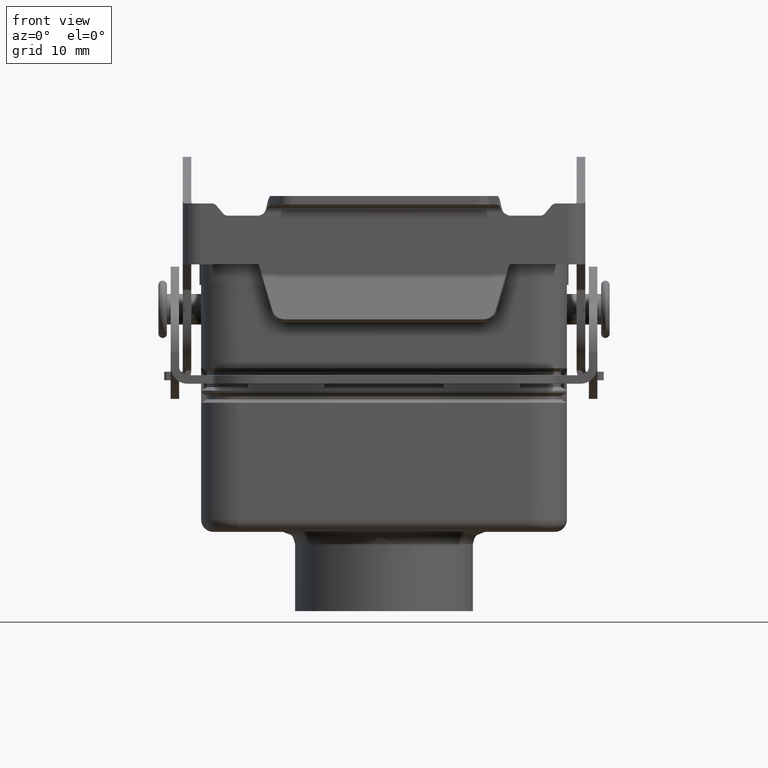
[diagram: clean part render]
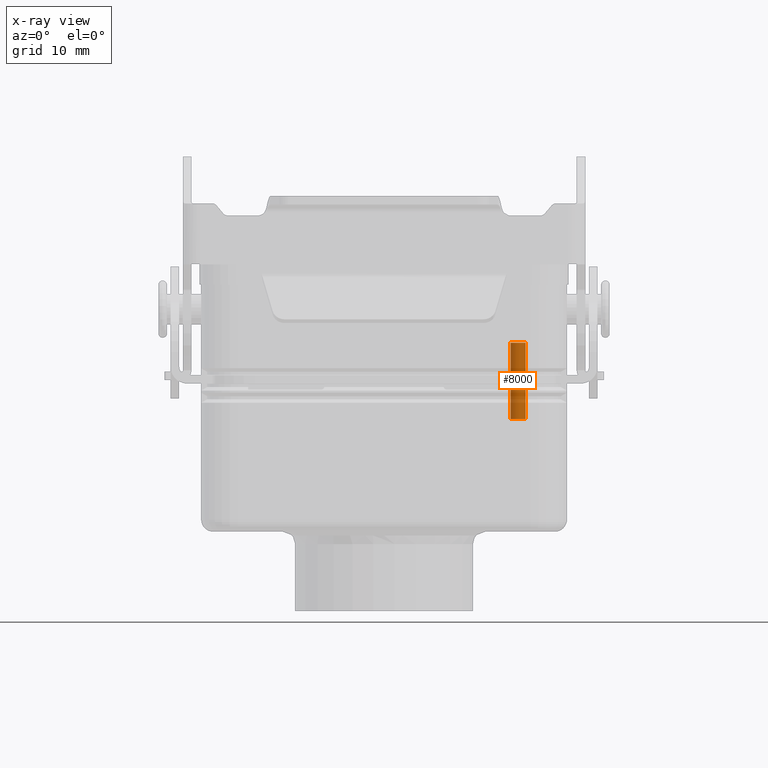
[diagram: x-ray — body ghosted, one internal face saturated and labeled with its STEP entity id]
A machine part, front view, then the same camera in x-ray: the body is ghosted and one INTERNAL B-rep face — a face not visible from any outside direction — is saturated and labeled: STEP entity #8000.
In plain terms, the highlighted face is a freeform B-spline surface patch.
Its self-contained STEP definition (entity closure, byte-faithful):
#7938=CARTESIAN_POINT('',(20.770000000000010,13.500000000000000,-5.500000000000002));
#7939=CARTESIAN_POINT('',(20.770000000000010,13.500000000000000,-18.000000000000004));
#7940=CARTESIAN_POINT('',(20.770000000000010,12.270000000000000,-5.500000000000002));
#7941=CARTESIAN_POINT('',(20.770000000000010,12.270000000000000,-18.000000000000004));
#7942=CARTESIAN_POINT('',(22.000000000000011,12.270000000000000,-5.500000000000002));
#7943=CARTESIAN_POINT('',(22.000000000000011,12.270000000000000,-18.000000000000004));
#7944=CARTESIAN_POINT('',(23.230000000000015,12.270000000000000,-5.500000000000002));
#7945=CARTESIAN_POINT('',(23.230000000000015,12.270000000000000,-18.000000000000004));
#7946=CARTESIAN_POINT('',(23.230000000000011,13.500000000000000,-5.500000000000002));
#7947=CARTESIAN_POINT('',(23.230000000000011,13.500000000000000,-18.000000000000004));
#7948=CARTESIAN_POINT('',(23.230000000000015,14.730000000000000,-5.500000000000002));
#7949=CARTESIAN_POINT('',(23.230000000000015,14.730000000000000,-18.000000000000004));
#7950=CARTESIAN_POINT('',(22.000000000000011,14.730000000000000,-5.500000000000002));
#7951=CARTESIAN_POINT('',(22.000000000000011,14.730000000000000,-18.000000000000004));
#7952=CARTESIAN_POINT('',(20.770000000000010,14.730000000000000,-5.500000000000002));
#7953=CARTESIAN_POINT('',(20.770000000000010,14.730000000000000,-18.000000000000004));
#7954=CARTESIAN_POINT('',(20.770000000000010,13.500000000000000,-5.500000000000002));
#7955=CARTESIAN_POINT('',(20.770000000000010,13.500000000000000,-18.000000000000004));
#7963=(BOUNDED_SURFACE()B_SPLINE_SURFACE(1,2,((#7938,#7940,#7942,#7944,#7946,#7948,#7950,#7952,#7954),(#7939,#7941,#7943,#7945,#7947,#7949,#7951,#7953,#7955)),.UNSPECIFIED.,.F.,.T.,.U.)B_SPLINE_SURFACE_WITH_KNOTS((2,2),(3,2,2,2,3),(-4.065040650406505,6.097560975609756),(0.0,1.932079481957723,3.864158963915445,5.796238445873168,7.728317927830891),.UNSPECIFIED.)GEOMETRIC_REPRESENTATION_ITEM()RATIONAL_B_SPLINE_SURFACE(((1.0,0.707106781186548,1.0,0.707106781186548,1.0,0.707106781186548,1.0,0.707106781186548,1.0),(1.0,0.707106781186548,1.0,0.707106781186548,1.0,0.707106781186548,1.0,0.707106781186548,1.0)))REPRESENTATION_ITEM('')SURFACE());
#7964=CARTESIAN_POINT('',(23.230000000000011,13.500000000000000,-18.000000000000004));
#7965=VERTEX_POINT('',#7964);
#7966=CARTESIAN_POINT('',(23.230000000000011,13.500000000000000,-5.500000000000003));
#7967=VERTEX_POINT('',#7966);
#7968=CARTESIAN_POINT('',(23.230000000000011,13.500000000000000,-18.000000000000004));
#7969=DIRECTION('',(0.0,0.0,1.0));
#7970=VECTOR('',#7969,12.500000000000000);
#7971=LINE('',#7968,#7970);
#7972=EDGE_CURVE('',#7965,#7967,#7971,.T.);
#7973=ORIENTED_EDGE('',*,*,#7972,.F.);
#7974=CARTESIAN_POINT('',(20.770000000000010,13.500000000000000,-18.0));
#7975=VERTEX_POINT('',#7974);
#7976=CARTESIAN_POINT('',(22.000000000000011,13.500000000000000,-18.000000000000004));
#7977=DIRECTION('',(0.0,0.0,1.0));
#7978=DIRECTION('',(1.0,0.0,0.0));
#7979=AXIS2_PLACEMENT_3D('',#7976,#7977,#7978);
#7980=CIRCLE('',#7979,1.230000000000000);
#7981=EDGE_CURVE('',#7975,#7965,#7980,.T.);
#7982=ORIENTED_EDGE('',*,*,#7981,.F.);
#7983=CARTESIAN_POINT('',(20.770000000000010,13.500000000000000,-5.500000000000002));
#7984=VERTEX_POINT('',#7983);
#7985=CARTESIAN_POINT('',(20.770000000000010,13.500000000000000,-5.500000000000002));
#7986=DIRECTION('',(0.0,0.0,-1.0));
#7987=VECTOR('',#7986,12.499999999999998);
#7988=LINE('',#7985,#7987);
#7989=EDGE_CURVE('',#7984,#7975,#7988,.T.);
#7990=ORIENTED_EDGE('',*,*,#7989,.F.);
#7991=CARTESIAN_POINT('',(22.000000000000011,13.500000000000000,-5.500000000000002));
#7992=DIRECTION('',(0.0,0.0,1.0));
#7993=DIRECTION('',(1.0,0.0,0.0));
#7994=AXIS2_PLACEMENT_3D('',#7991,#7992,#7993);
#7995=CIRCLE('',#7994,1.230000000000000);
#7996=EDGE_CURVE('',#7984,#7967,#7995,.T.);
#7997=ORIENTED_EDGE('',*,*,#7996,.T.);
#7998=EDGE_LOOP('',(#7973,#7982,#7990,#7997));
#7999=FACE_OUTER_BOUND('',#7998,.T.);
#8000=ADVANCED_FACE('',(#7999),#7963,.F.);